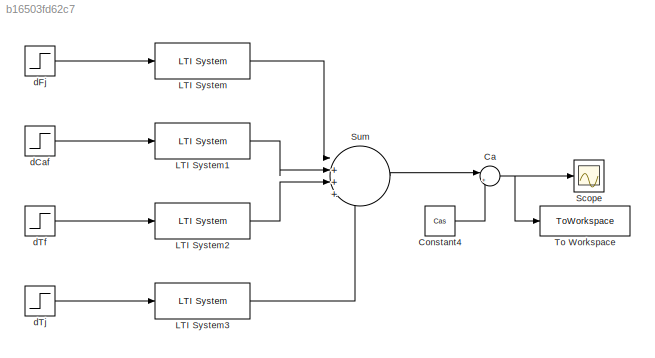
MODEL slx_b16503fd62c7
KIND model
CONFIG AbsTol = auto
CONFIG EnableMultiTasking = off
CONFIG FixedStep = 0.01
CONFIG MaxStep = auto
CONFIG MinStep = auto
CONFIG RelTol = 1e-3
CONFIG SampleTimeConstraint = Unconstrained
CONFIG SolverName = FixedStepAuto
CONFIG StartTime = 0.0
CONFIG StopTime = 15
BLOCK [Sum]                 Ca
  Inputs = |++
  NameLocation = top
  Ports = [2, 1]
BLOCK [Constant] Constant4
  Value = Cas
BLOCK [Reference] LTI System  REF=cstblocks/LTI System
  Ports = [1, 1]
  SourceBlock = cstblocks/LTI System
  SourceProductBaseCode = CT
  SourceType = LTI Block
BLOCK [Reference] LTI System1  REF=cstblocks/LTI System
  Ports = [1, 1]
  SourceBlock = cstblocks/LTI System
  SourceProductBaseCode = CT
  SourceType = LTI Block
BLOCK [Reference] LTI System2  REF=cstblocks/LTI System
  Ports = [1, 1]
  SourceBlock = cstblocks/LTI System
  SourceProductBaseCode = CT
  SourceType = LTI Block
BLOCK [Reference] LTI System3  REF=cstblocks/LTI System
  Ports = [1, 1]
  SourceBlock = cstblocks/LTI System
  SourceProductBaseCode = CT
  SourceType = LTI Block
BLOCK [Scope] Scope
  Floating = off
  NumInputPorts = 1
  Ports = [1]
  ScopeSpecificationString = Simulink.scopes.TimeScopeBlockCfg('CurrentConfiguration', extmgr.ConfigurationSet(extmgr.Configuration('Core','General UI',true,'FigureColor',[1 1 1]),extmgr.Configuration('Core','Source UI',true),extmgr.Configuration('Sources','WiredSimulink',true),extmgr.Configuration('Visuals','Time Domain',true,'SerializedDisplays',{struct('MinYLimReal','8.5599','MaxYLimReal','8.60093','YLabelReal','','MinYLim...<+1484ch>
BLOCK [Sum] Sum
  Inputs = |++++
  Ports = [4, 1]
BLOCK [ToWorkspace] To Workspace
  FixptAsFi = on
  MaxDataPoints = inf
  Ports = [1]
  SampleTime = -1
  SaveFormat = Timeseries
  VariableName = CaLinearTF
BLOCK [Step] dCaf
  After = 0
  SampleTime = 0
  Time = 0
BLOCK [Step] dFj
  After = 0.01
  SampleTime = 0
  Time = 0
BLOCK [Step] dTf
  After = 0
  SampleTime = 0
  Time = 0
BLOCK [Step] dTj
  After = 0
  SampleTime = 0
  Time = 0
NET                 Ca:1 -> Scope:1, To Workspace:1
LINE Constant4:1 ->                 Ca:2
LINE LTI System1:1 -> Sum:2
LINE LTI System2:1 -> Sum:3
LINE LTI System3:1 -> Sum:4
LINE LTI System:1 -> Sum:1
LINE Sum:1 ->                 Ca:1
LINE dCaf:1 -> LTI System1:1
LINE dFj:1 -> LTI System:1
LINE dTf:1 -> LTI System2:1
LINE dTj:1 -> LTI System3:1
note: NET lines group one-source signal fan-out (src -> all destinations, sorted); 1:1 wires keep LINE
